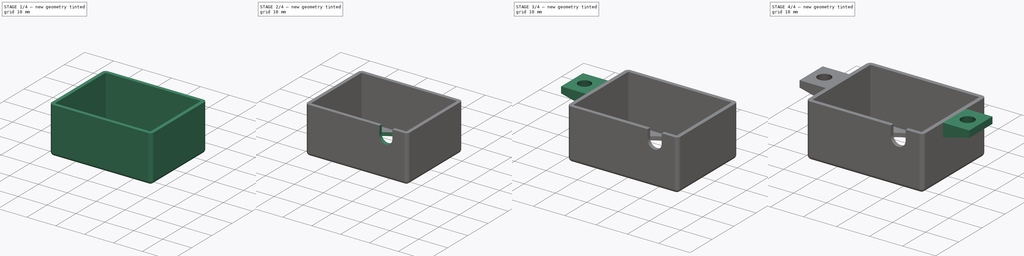
[diagram: build sequence overview — one tinted view per stage of 4, left to right]
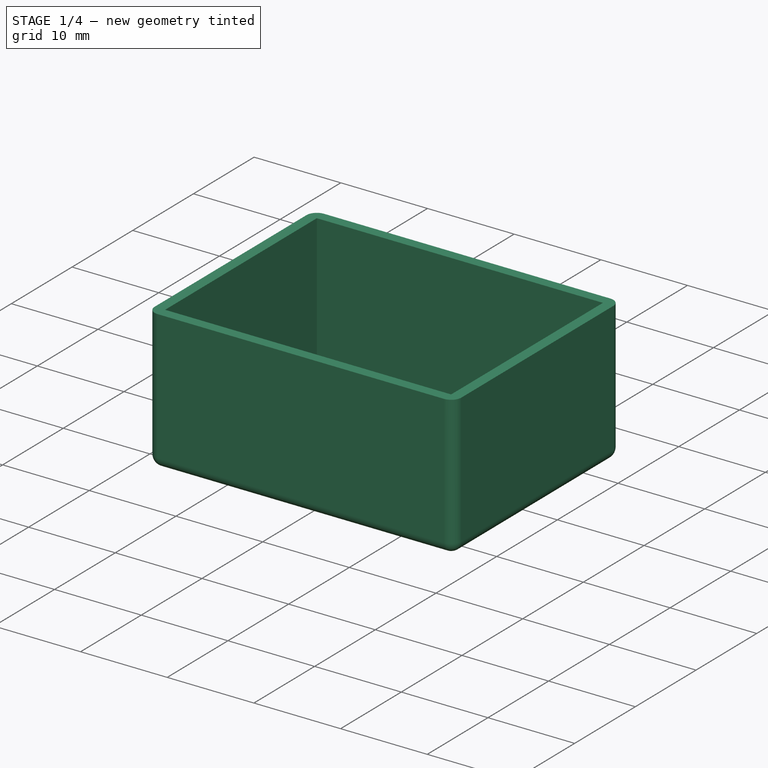
[diagram: stage 1 of 4 — iso view after this stage's code; geometry added in this stage tinted green]
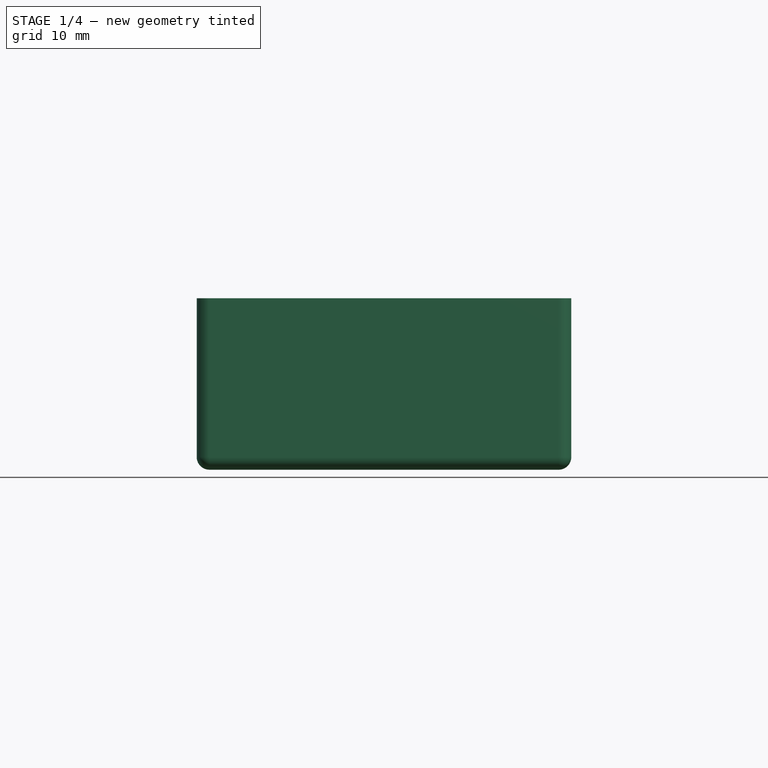
[diagram: stage 1 of 4 — front view after this stage's code; geometry added in this stage tinted green]
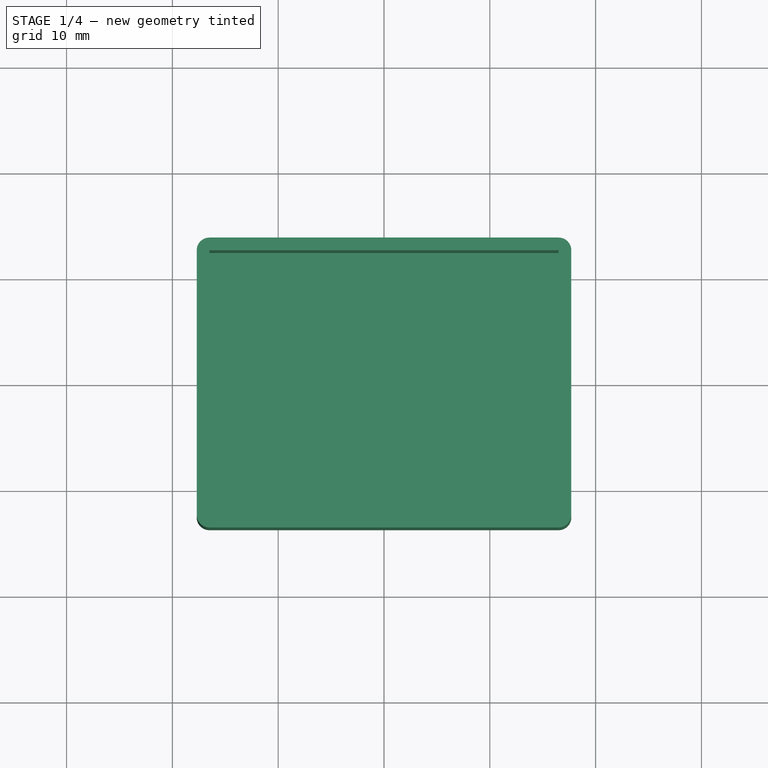
[diagram: stage 1 of 4 — top view after this stage's code; geometry added in this stage tinted green]
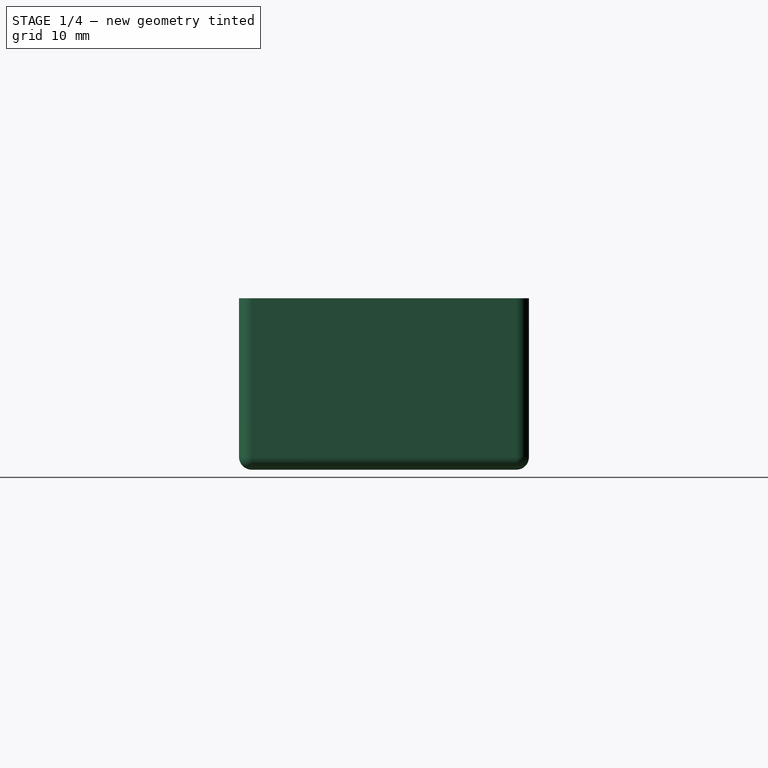
[diagram: stage 1 of 4 — right view after this stage's code; geometry added in this stage tinted green]
FCSTD DOCUMENT  (FreeCAD 0.18.3R)
Label: PirCase02
License: All rights reserved
LicenseURL: http://en.wikipedia.org/wiki/All_rights_reserved
objects: Sketcher::SketchObject×5, PartDesign::Body×4, PartDesign::Pad×3, Part::Cut×2, PartDesign::Thickness×1, PartDesign::Pocket×1, PartDesign::Revolution×1, Part::Mirroring×1, Part::Fuse×1
note: 24 computed .brp shape members not serialized (recipe doc carries the construction recipe); baked Part::Feature solids carry a one-line shape summary decoded from their .brp

FEATURE [Sketcher::SketchObject] Sketch  label="Marco"
  MapMode = 5
  Support = -> [XY_Plane]
  sketch-geometry (4):
    g0: LineSegment StartX=-16.5 StartY=12.5 StartZ=0 EndX=16.5 EndY=12.5 EndZ=0
    g1: LineSegment StartX=16.5 StartY=12.5 StartZ=0 EndX=16.5 EndY=-12.5 EndZ=0
    g2: LineSegment StartX=16.5 StartY=-12.5 StartZ=0 EndX=-16.5 EndY=-12.5 EndZ=0
    g3: LineSegment StartX=-16.5 StartY=-12.5 StartZ=0 EndX=-16.5 EndY=12.5 EndZ=0
  constraints (11):
    c: Coincident(g0,g1)
    c: Coincident(g1,g2)
    c: Coincident(g2,g3)
    c: Coincident(g3,g0)
    c: Horizontal(g0)
    c: Horizontal(g2)
    c: Vertical(g1)
    c: Vertical(g3)
    c: DistanceX(g0,g0) = 33  'largo'
    c: DistanceY(g3,g3) = 25  'ancho'
    c: Symmetric(g0,g1,g-1)
FEATURE [PartDesign::Pad] Pad  label="box"
  Length = 15
  Length2 = 100
  Profile = -> Sketch
  Type = 0
FEATURE [PartDesign::Thickness] Thickness  label="Paredes"
  Base = -> Pad [Face6]
  BaseFeature = -> Pad
  Join = 0
  Mode = 0
  Value = 1.2
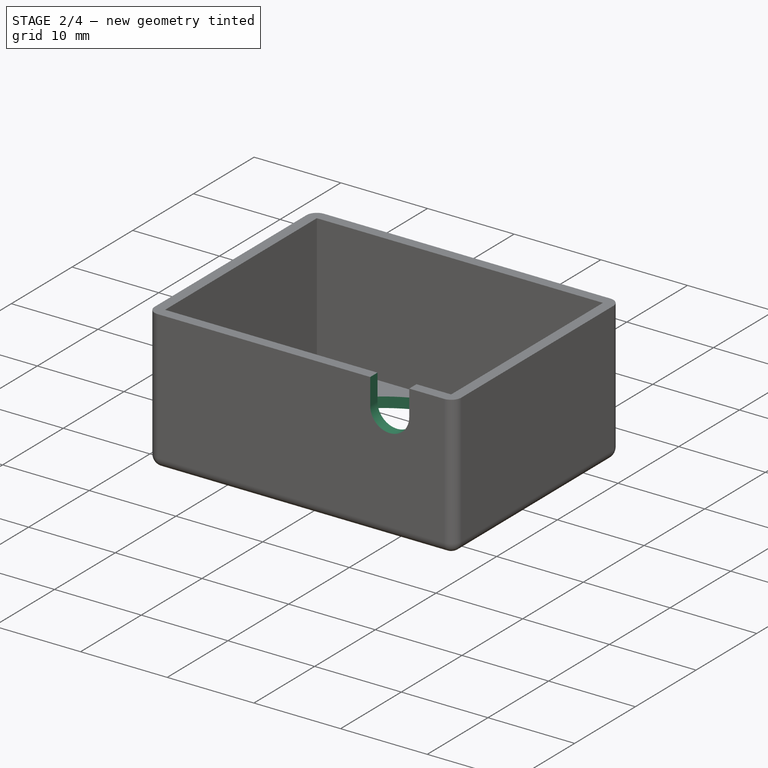
[diagram: stage 2 of 4 — iso view after this stage's code; geometry added in this stage tinted green]
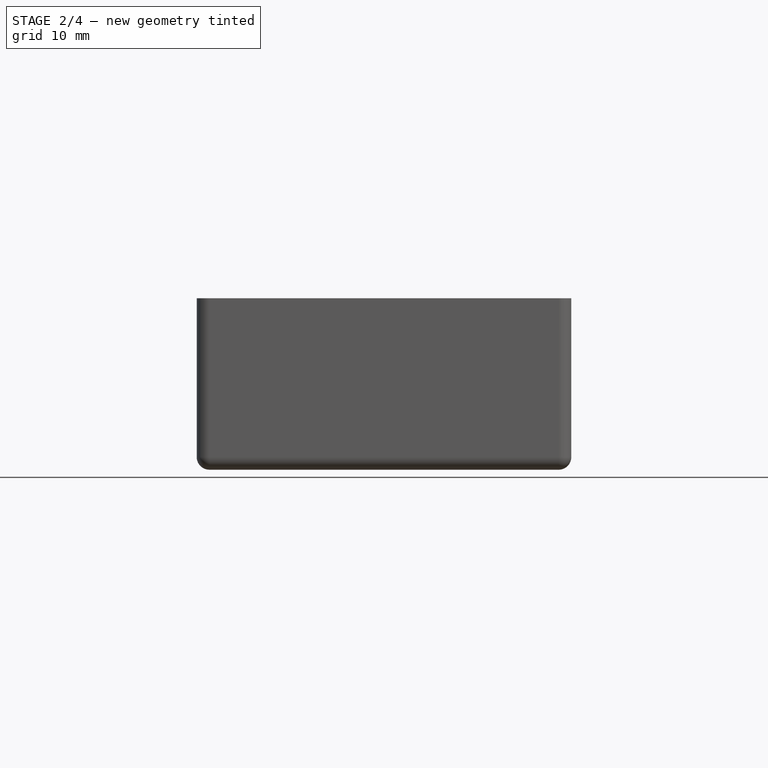
[diagram: stage 2 of 4 — front view after this stage's code; geometry added in this stage tinted green]
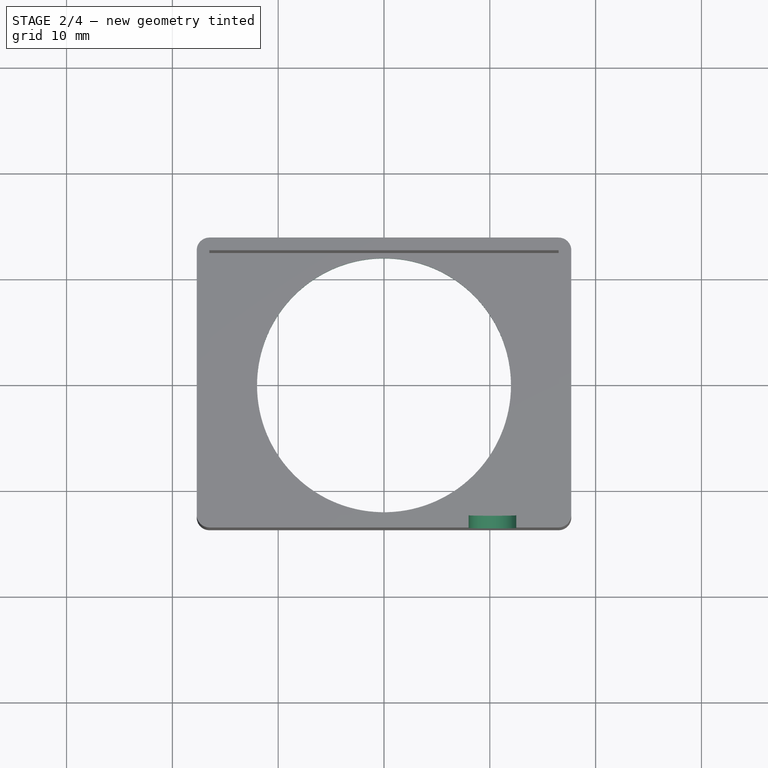
[diagram: stage 2 of 4 — top view after this stage's code; geometry added in this stage tinted green]
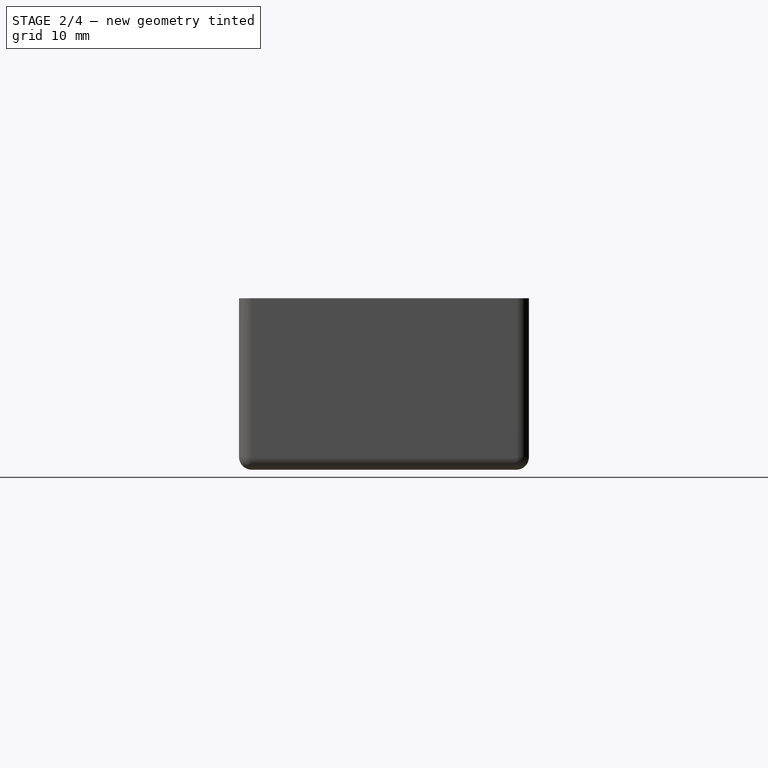
[diagram: stage 2 of 4 — right view after this stage's code; geometry added in this stage tinted green]
FEATURE [Sketcher::SketchObject] Sketch001  label="HuecoPIR"
  MapMode = 5
  Placement = pos=(0,0,-1.2) rot=(1,0,0;3.14159rad)
  Support = -> [Thickness]
  sketch-geometry (1):
    g0: Circle CenterX=0 CenterY=0 CenterZ=0 NormalX=0 NormalY=0 NormalZ=1 AngleXU=0 Radius=12
  constraints (2):
    c: Radius(g0) = 12
    c: Coincident(g0,g-1)
FEATURE [PartDesign::Pocket] Pocket
  BaseFeature = -> Thickness
  Length = 5
  Length2 = 100
  Profile = -> Sketch001
  Type = 1
FEATURE [Sketcher::SketchObject] Sketch004  label="Agujero"
  AttachmentOffset = pos=(0,0,12.5) rot=(0,0,1;0rad)
  MapMode = 5
  Placement = pos=(0,-12.5,2.8e-15) rot=(1,0,0;1.5708rad)
  Support = -> [XZ_Plane003]
  expr: AttachmentOffset.Base.z = Marco.Constraints.ancho / 2
  expr: Constraints[8] = box.Length
  expr: Constraints[7] = Marco.Constraints.largo / 2 - 4mm
  sketch-geometry (5):
    g0: LineSegment StartX=8 StartY=15 StartZ=0 EndX=12.5 EndY=15 EndZ=0
    g1: LineSegment StartX=12.5 StartY=15 StartZ=0 EndX=12.5 EndY=12 EndZ=0
    g2: LineSegment StartX=8 StartY=12 StartZ=0 EndX=8 EndY=15 EndZ=0
    g3: ArcOfCircle CenterX=10.25 CenterY=12 CenterZ=0 NormalX=0 NormalY=0 NormalZ=1 AngleXU=0 Radius=2.25 StartAngle=3.14159 EndAngle=6.28319
    g4: LineSegment [constr] StartX=8 StartY=12 StartZ=0 EndX=12.5 EndY=12 EndZ=0
  constraints (15):
    c: Coincident(g0,g1)
    c: Coincident(g2,g0)
    c: Horizontal(g0)
    c: Vertical(g1)
    c: Vertical(g2)
    c: DistanceY(g2,g2) = 3
    c: DistanceX(g0,g0) = 4.5
    c: DistanceX(g-1,g0) = 12.5
    c: DistanceY(g-1,g0) = 15
    c: Coincident(g3,g1)
    c: Coincident(g3,g2)
    c: Equal(g1,g2)
    c: Coincident(g4,g1)
    c: Coincident(g4,g2)
    c: PointOnObject(g3,g4)
FEATURE [PartDesign::Pad] Pad002
  Length = 1.2
  Length2 = 100
  Placement = pos=(0,0,0) rot=(1,0,0;1.5708rad)
  Profile = -> Sketch004
  Type = 0
  expr: Length = Paredes.Value
FEATURE [PartDesign::Body] Body003  label="CableHole"
  Group = -> [Sketch004,Pad002]
  Origin = -> Origin003
  Tip = -> Pad002
FEATURE [Part::Cut] Cut001  label="CaseWithCableHole"
  Base = -> Body
  Tool = -> Body003
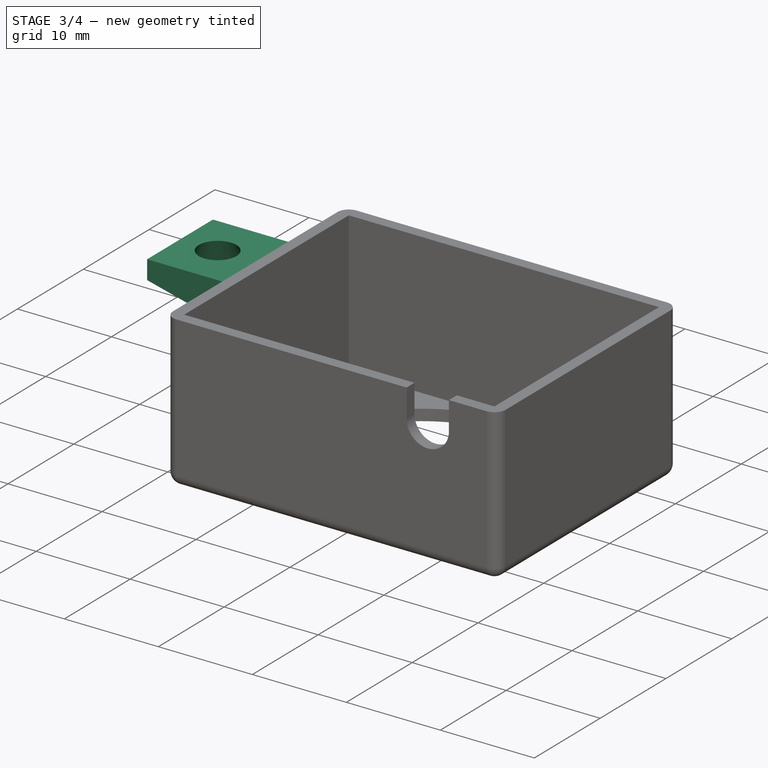
[diagram: stage 3 of 4 — iso view after this stage's code; geometry added in this stage tinted green]
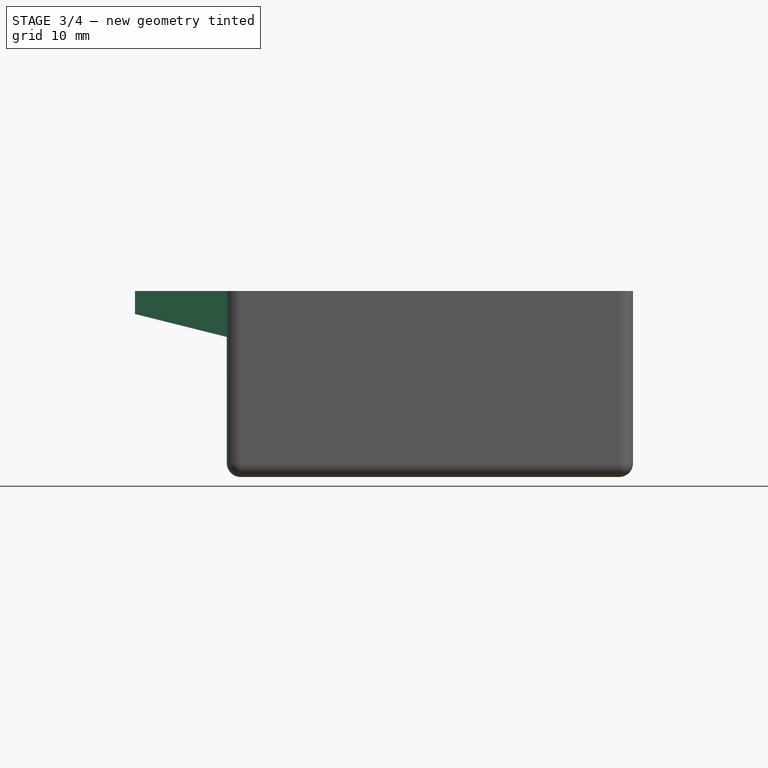
[diagram: stage 3 of 4 — front view after this stage's code; geometry added in this stage tinted green]
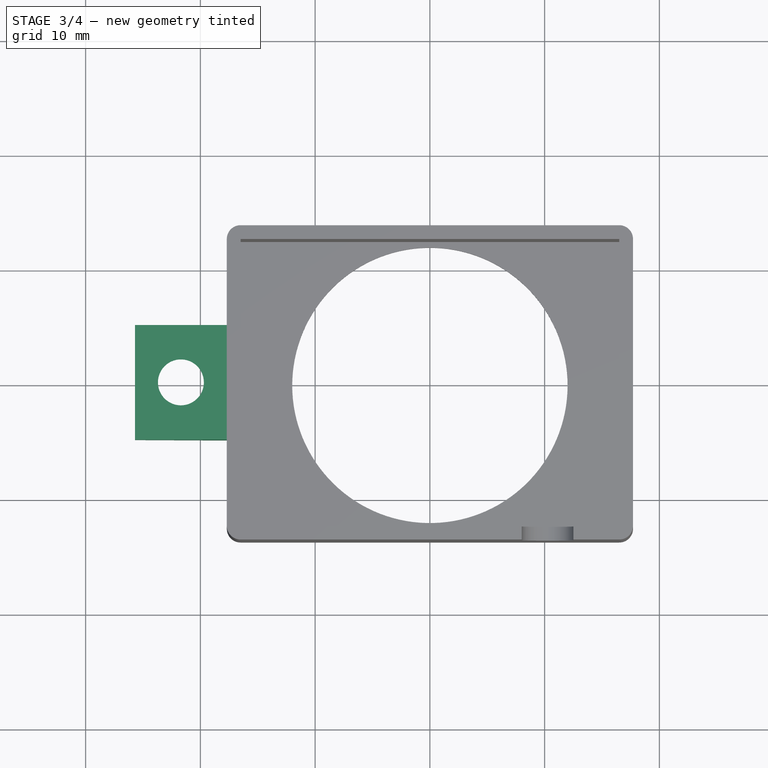
[diagram: stage 3 of 4 — top view after this stage's code; geometry added in this stage tinted green]
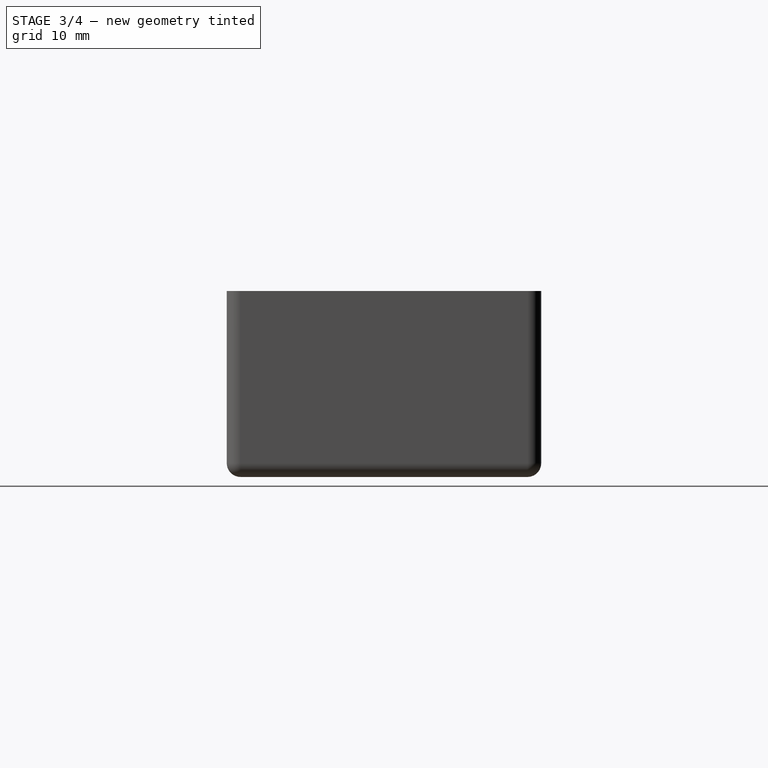
[diagram: stage 3 of 4 — right view after this stage's code; geometry added in this stage tinted green]
FEATURE [PartDesign::Body] Body  label="Case"
  Group = -> [Sketch,Pad,Thickness,Sketch001,Pocket]
  Origin = -> Origin
  Tip = -> Pocket
FEATURE [Sketcher::SketchObject] Sketch002  label="SecOreja"
  MapMode = 5
  Placement = pos=(0,0,0) rot=(1,0,0;1.5708rad)
  Support = -> [XZ_Plane001]
  expr: Constraints[11] = box.Length
  expr: Constraints[10] = Paredes.Value + Marco.Constraints.largo / 2
  sketch-geometry (4):
    g0: LineSegment StartX=-17.7 StartY=15 StartZ=0 EndX=-25.7 EndY=15 EndZ=0
    g1: LineSegment StartX=-25.7 StartY=15 StartZ=0 EndX=-25.7 EndY=13 EndZ=0
    g2: LineSegment StartX=-25.7 StartY=13 StartZ=0 EndX=-17.7 EndY=11 EndZ=0
    g3: LineSegment StartX=-17.7 StartY=11 StartZ=0 EndX=-17.7 EndY=15 EndZ=0
  constraints (12):
    c: Coincident(g0,g1)
    c: Coincident(g1,g2)
    c: Coincident(g2,g3)
    c: Coincident(g3,g0)
    c: Parallel(g0,g-1)
    c: Perpendicular(g0,g3)
    c: Parallel(g1,g3)
    c: DistanceY(g1,g1) = 2
    c: DistanceX(g0,g0) = 8  'largo'
    c: DistanceY(g3,g3) = 4
    c: DistanceX(g0,g-1) = 17.7
    c: DistanceY(g-1,g0) = 15
FEATURE [PartDesign::Pad] Pad001  label="PadOreja"
  Length = 10
  Length2 = 100
  Midplane = true
  Placement = pos=(0,0,0) rot=(1,0,0;1.5708rad)
  Profile = -> Sketch002
  Type = 0
FEATURE [PartDesign::Body] Body001  label="Oreja"
  Group = -> [Sketch002,Pad001]
  Origin = -> Origin001
  Tip = -> Pad001
FEATURE [Sketcher::SketchObject] Sketch003  label="tornilloSilueta"
  MapMode = 5
  Placement = pos=(0,0,0) rot=(1,0,0;1.5708rad)
  Support = -> [XZ_Plane002]
  expr: Constraints[11] = box.Length
  sketch-geometry (4):
    g0: LineSegment StartX=7.1e-15 StartY=15 StartZ=0 EndX=0 EndY=11 EndZ=0
    g1: LineSegment StartX=0 StartY=11 StartZ=0 EndX=4 EndY=11 EndZ=0
    g2: LineSegment StartX=4 StartY=11 StartZ=0 EndX=2 EndY=15 EndZ=0
    g3: LineSegment StartX=2 StartY=15 StartZ=0 EndX=7.1e-15 EndY=15 EndZ=0
  constraints (12):
    c: Coincident(g0,g1)
    c: Coincident(g1,g2)
    c: Coincident(g3,g0)
    c: Parallel(g3,g1)
    c: Perpendicular(g1,g0)
    c: Parallel(g1,g-1)
    c: DistanceX(g3,g3) = 2
    c: DistanceX(g1,g1) = 4
    c: DistanceY(g0,g2) = 4
    c: DistanceX(g0,g-1) = 0
    c: Coincident(g3,g2)
    c: DistanceY(g-1,g0) = 15
FEATURE [PartDesign::Revolution] Revolution
  Angle = 360
  Axis = (0,-2e-16,1)
  Base = (0,0,0)
  Placement = pos=(0,0,0) rot=(1,0,0;1.5708rad)
  Profile = -> Sketch003
  ReferenceAxis = -> Sketch003 [V_Axis]
  Reversed = true
FEATURE [PartDesign::Body] Body002  label="Tornillo"
  Group = -> [Sketch003,Revolution]
  Origin = -> Origin002
  Placement = pos=(-21.7,0,0) rot=(0,0,1;0rad)
  Tip = -> Revolution
  expr: Placement.Base.x = -(SecOreja.Constraints.largo / 2 + Marco.Constraints.largo / 2 + Paredes.Value)
FEATURE [Part::Cut] Cut  label="OrejaHueca"
  Base = -> Body001
  Tool = -> Body002
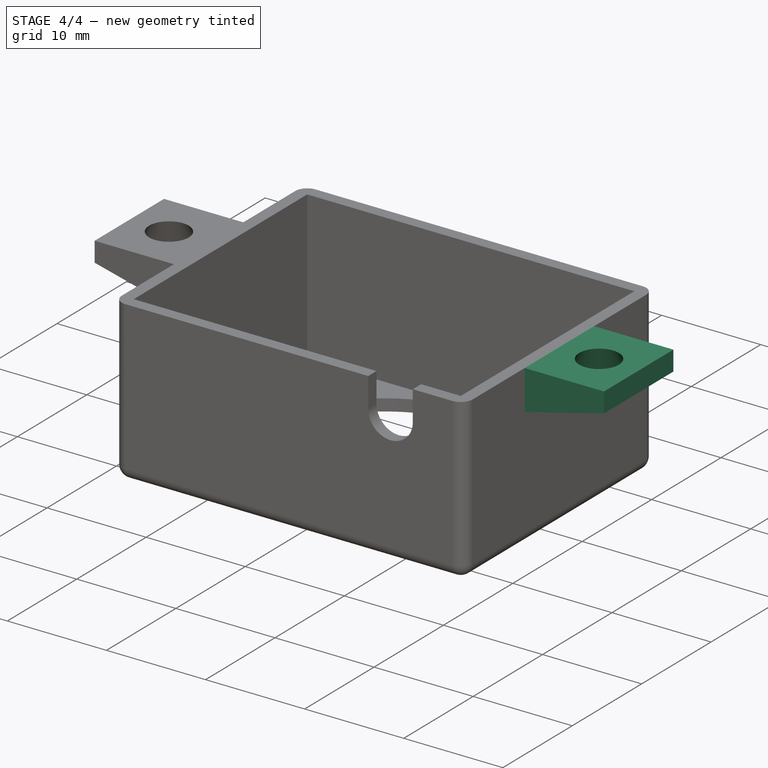
[diagram: stage 4 of 4 — iso view after this stage's code; geometry added in this stage tinted green]
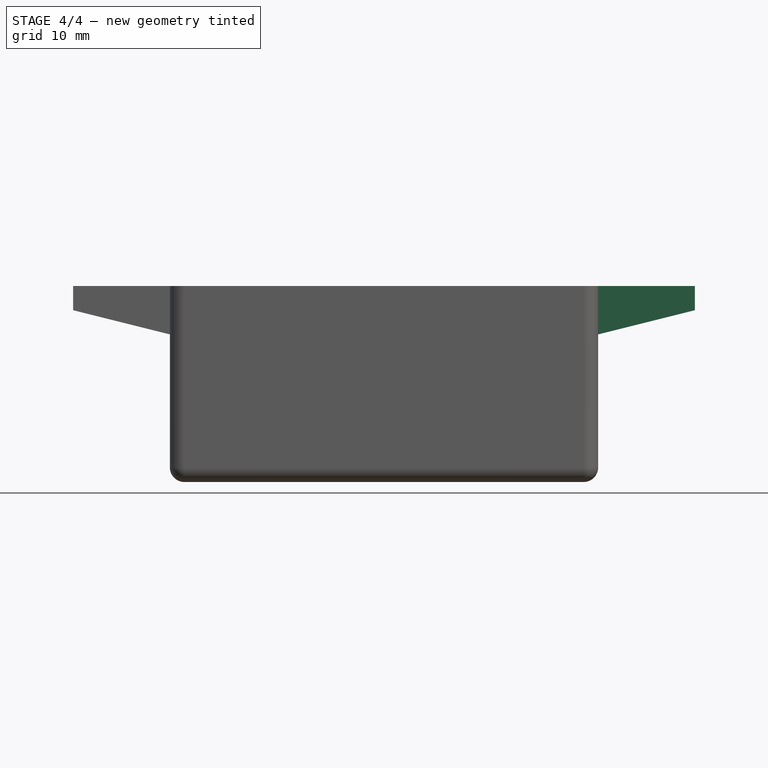
[diagram: stage 4 of 4 — front view after this stage's code; geometry added in this stage tinted green]
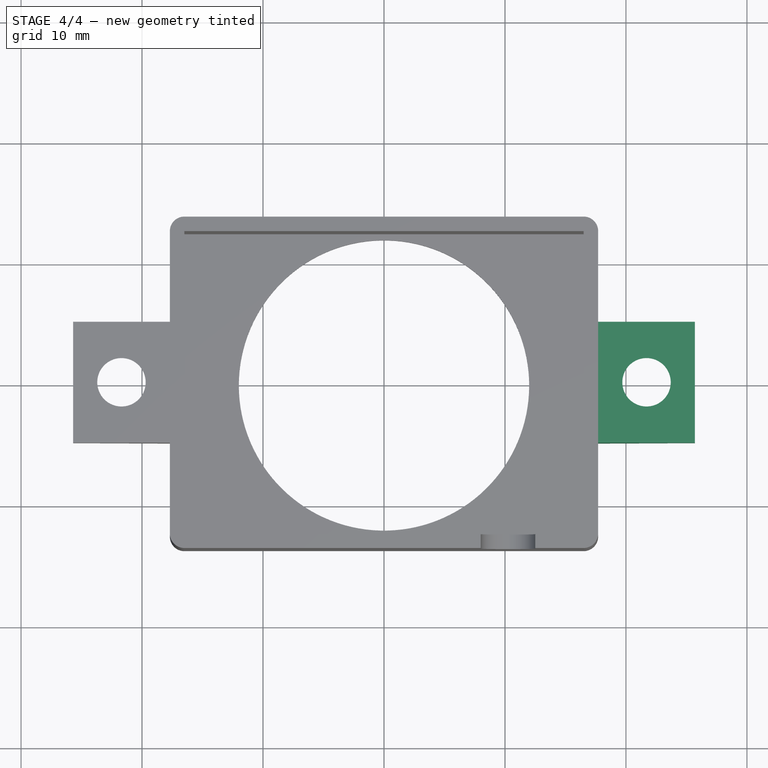
[diagram: stage 4 of 4 — top view after this stage's code; geometry added in this stage tinted green]
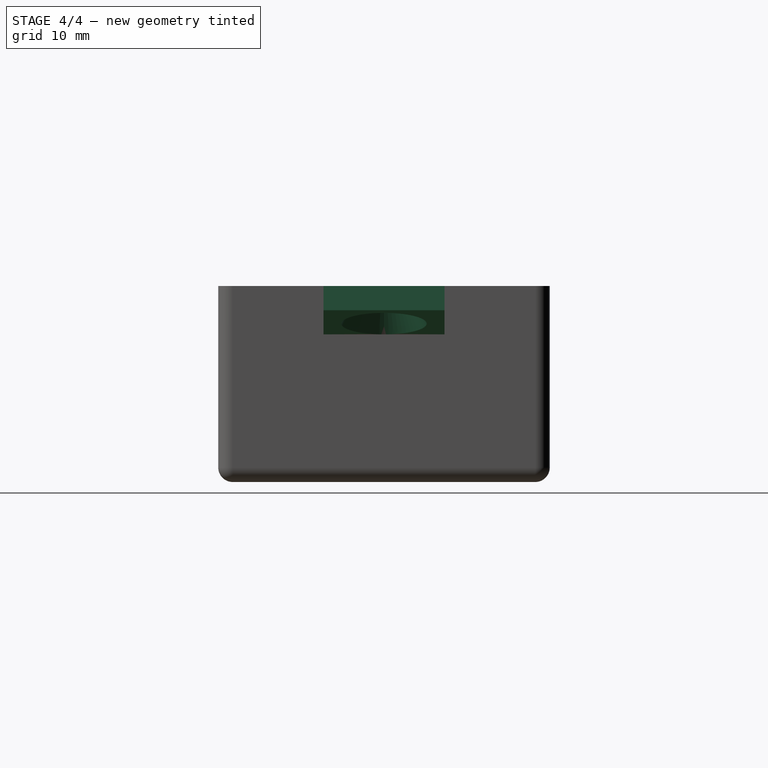
[diagram: stage 4 of 4 — right view after this stage's code; geometry added in this stage tinted green]
FEATURE [Part::Mirroring] Part__Mirroring  label="OrejaReflejada"
  Base = (0,0,0)
  Normal = (1,0,0)
  Source = -> Cut
FEATURE [Part::Fuse] Fusion  label="Orejas"
  Base = -> Cut
  Tool = -> Part__Mirroring
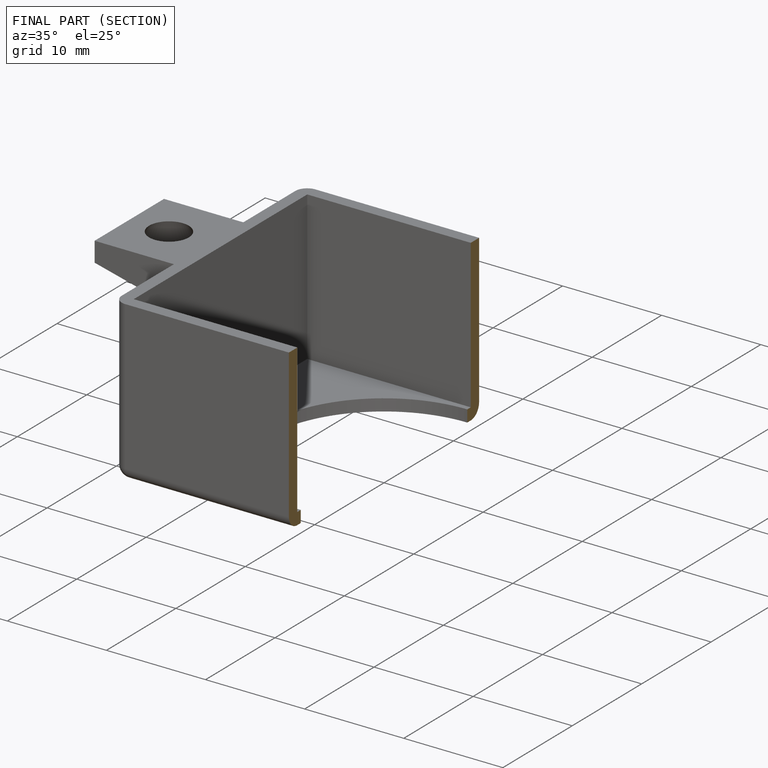
[diagram: finished part — half-section view (interior)]
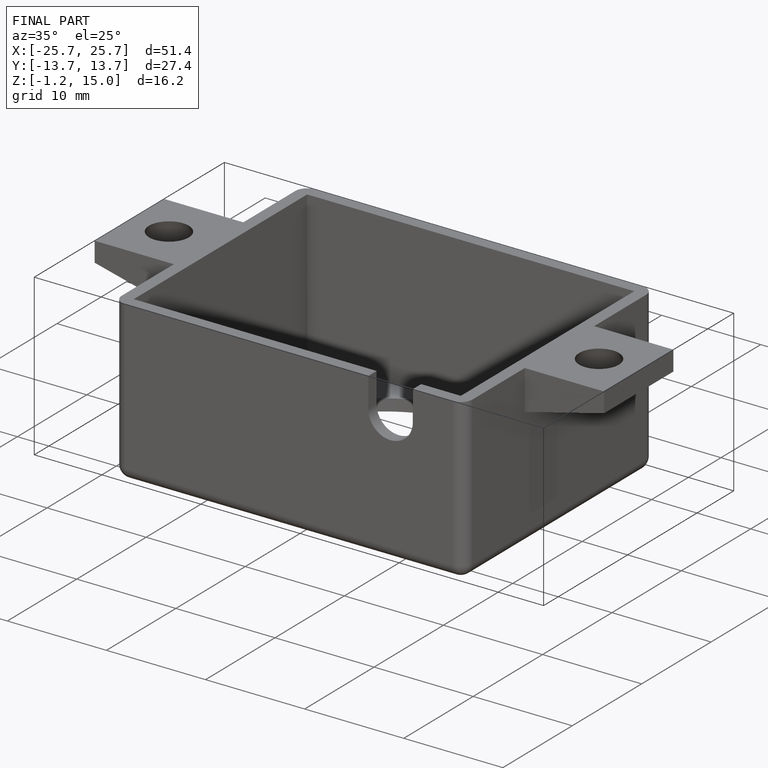
[diagram: finished part — iso view with bounding-box wireframe]
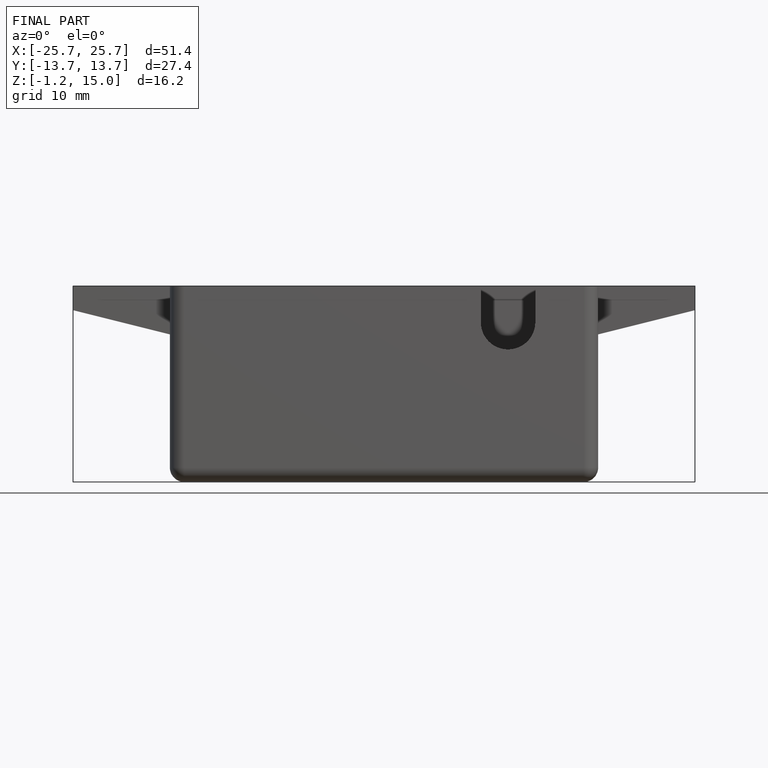
[diagram: finished part — front view with bounding-box wireframe]
